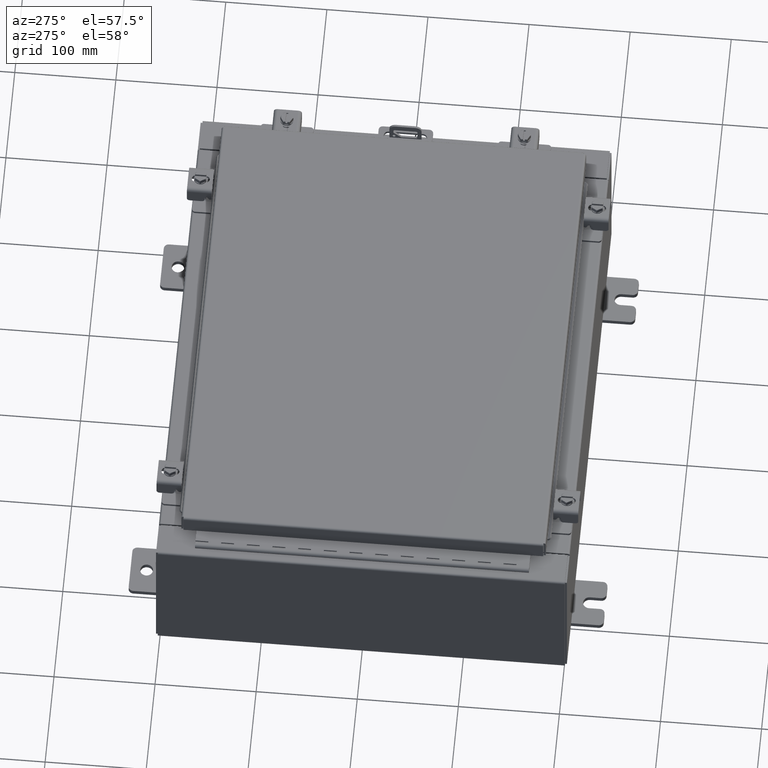
[diagram: clean part render]
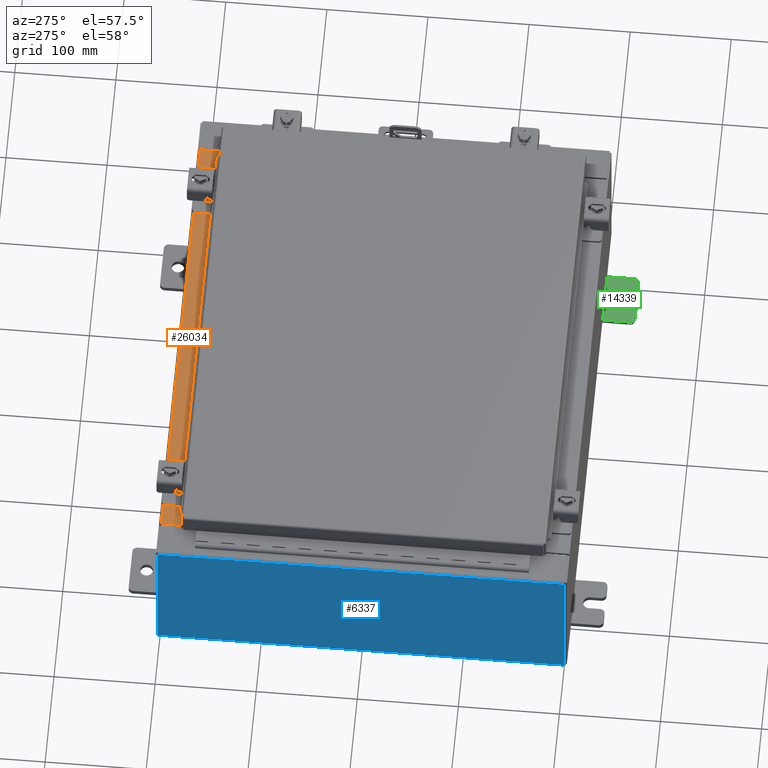
[diagram: same view with three faces highlighted in distinct colors, each labeled with its STEP entity id]
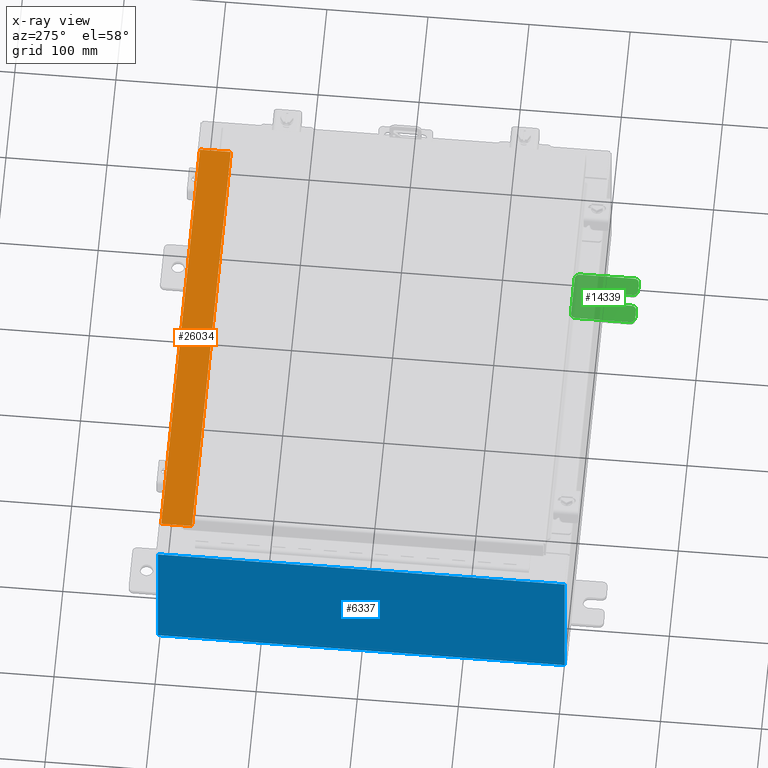
[diagram: x-ray of the same camera — body ghosted, the three highlighted faces saturated]
A machine part, auxiliary view with three faces highlighted in distinct colors.
The next image is the same camera in x-ray (body ghosted, the three faces saturated) — at least one of them is partly hidden behind the body in this view.
Their STEP definitions:

[orange] entity #26034 — the highlighted planar face has unit normal (0, 0, 1).
#578 = CARTESIAN_POINT ( 'NONE',  ( 8.637200000000000000, -0.08769999999999965300, 3.000000000000000900 ) ) ;
#1614 = VERTEX_POINT ( 'NONE', #14060 ) ;
#1762 = VECTOR ( 'NONE', #8350, 39.37007874015748100 ) ;
#2016 = EDGE_CURVE ( 'NONE', #11743, #1614, #24458, .T. ) ;
#2446 = CARTESIAN_POINT ( 'NONE',  ( -8.637200000000000000, -0.07469999999999973900, 3.000000000000000900 ) ) ;
#3567 = CARTESIAN_POINT ( 'NONE',  ( 0.0000000000000000000, 1.069354855923099900E-014, 3.000000000000000900 ) ) ;
#4260 = VECTOR ( 'NONE', #22694, 39.37007874015748100 ) ;
#4851 = VECTOR ( 'NONE', #14466, 39.37007874015748100 ) ;
#5469 = EDGE_CURVE ( 'NONE', #8157, #11743, #15552, .T. ) ;
#6122 = LINE ( 'NONE', #2446, #4851 ) ;
#6949 = DIRECTION ( 'NONE',  ( -1.000000000000000000, 0.0000000000000000000, 0.0000000000000000000 ) ) ;
#6972 = ORIENTED_EDGE ( 'NONE', *, *, #15783, .F. ) ;
#7086 = VECTOR ( 'NONE', #6949, 39.37007874015748100 ) ;
#7666 = CARTESIAN_POINT ( 'NONE',  ( 8.637200000000000000, -1.287299999999999900, 3.000000000000005300 ) ) ;
#8157 = VERTEX_POINT ( 'NONE', #578 ) ;
#8350 = DIRECTION ( 'NONE',  ( -1.000000000000000000, 3.162886113166609200E-017, -1.128005754888089100E-031 ) ) ;
#9191 = AXIS2_PLACEMENT_3D ( 'NONE', #3567, #11656, #25755 ) ;
#10632 = CARTESIAN_POINT ( 'NONE',  ( 8.637200000000000000, -1.300299999999999800, 3.000000000000005300 ) ) ;
#11656 = DIRECTION ( 'NONE',  ( 0.0000000000000000000, 3.566381192773190000E-015, 1.000000000000000000 ) ) ;
#11743 = VERTEX_POINT ( 'NONE', #7666 ) ;
#11952 = ORIENTED_EDGE ( 'NONE', *, *, #2016, .F. ) ;
#14060 = CARTESIAN_POINT ( 'NONE',  ( -8.637200000000000000, -1.287299999999999200, 3.000000000000005300 ) ) ;
#14132 = VERTEX_POINT ( 'NONE', #17858 ) ;
#14334 = EDGE_CURVE ( 'NONE', #8157, #14132, #17785, .T. ) ;
#14466 = DIRECTION ( 'NONE',  ( -0.0000000000000000000, 1.000000000000000000, -3.566381192773190000E-015 ) ) ;
#15552 = LINE ( 'NONE', #10632, #4260 ) ;
#15783 = EDGE_CURVE ( 'NONE', #1614, #14132, #6122, .T. ) ;
#16930 = EDGE_LOOP ( 'NONE', ( #6972, #11952, #19156, #19965 ) ) ;
#17785 = LINE ( 'NONE', #24420, #1762 ) ;
#17858 = CARTESIAN_POINT ( 'NONE',  ( -8.637200000000000000, -0.08770000000000000000, 3.000000000000000900 ) ) ;
#19156 = ORIENTED_EDGE ( 'NONE', *, *, #5469, .F. ) ;
#19965 = ORIENTED_EDGE ( 'NONE', *, *, #14334, .T. ) ;
#21664 = PLANE ( 'NONE',  #9191 ) ;
#22694 = DIRECTION ( 'NONE',  ( -0.0000000000000000000, -1.000000000000000000, 3.566381192773190000E-015 ) ) ;
#23066 = CARTESIAN_POINT ( 'NONE',  ( 8.637200000000000000, -1.287299999999999900, 3.000000000000005300 ) ) ;
#24420 = CARTESIAN_POINT ( 'NONE',  ( -2.773851121247453900E-018, -0.08770000000000000000, 3.000000000000001300 ) ) ;
#24458 = LINE ( 'NONE', #23066, #7086 ) ;
#25755 = DIRECTION ( 'NONE',  ( 0.0000000000000000000, -1.000000000000000000, 3.566381192773190000E-015 ) ) ;
#25961 = FACE_OUTER_BOUND ( 'NONE', #16930, .T. ) ;
#26034 = ADVANCED_FACE ( 'NONE', ( #25961 ), #21664, .T. ) ;

[blue] entity #6337 — the highlighted planar face has unit normal (1, 0, 0).
#249 = LINE ( 'NONE', #5908, #21650 ) ;
#366 = EDGE_CURVE ( 'NONE', #5786, #7258, #249, .T. ) ;
#1404 = FACE_OUTER_BOUND ( 'NONE', #11728, .T. ) ;
#1722 = DIRECTION ( 'NONE',  ( 1.000000000000000000, 0.0000000000000000000, 3.319545939341922800E-015 ) ) ;
#2284 = VERTEX_POINT ( 'NONE', #9750 ) ;
#3407 = DIRECTION ( 'NONE',  ( -0.0000000000000000000, 1.000000000000000000, -0.0000000000000000000 ) ) ;
#3761 = ORIENTED_EDGE ( 'NONE', *, *, #366, .T. ) ;
#5786 = VERTEX_POINT ( 'NONE', #9465 ) ;
#5908 = CARTESIAN_POINT ( 'NONE',  ( -10.00000000000000000, -7.925300000000000000, -3.345627304943080600E-014 ) ) ;
#6337 = ADVANCED_FACE ( 'NONE', ( #1404 ), #25852, .F. ) ;
#6363 = CARTESIAN_POINT ( 'NONE',  ( -10.00000000000000000, 7.925300000000000000, 0.01299999999999985900 ) ) ;
#6603 = ORIENTED_EDGE ( 'NONE', *, *, #23966, .T. ) ;
#6825 = LINE ( 'NONE', #23470, #10299 ) ;
#6869 = ORIENTED_EDGE ( 'NONE', *, *, #13597, .T. ) ;
#7258 = VERTEX_POINT ( 'NONE', #19580 ) ;
#9465 = CARTESIAN_POINT ( 'NONE',  ( -10.00000000000000000, -7.925300000000000000, 0.01299999999999986400 ) ) ;
#9600 = VECTOR ( 'NONE', #14231, 39.37007874015748100 ) ;
#9750 = CARTESIAN_POINT ( 'NONE',  ( -10.00000000000002000, 7.925300000000000000, 5.837599999999999200 ) ) ;
#10299 = VECTOR ( 'NONE', #3407, 39.37007874015748100 ) ;
#10738 = ORIENTED_EDGE ( 'NONE', *, *, #20665, .F. ) ;
#11728 = EDGE_LOOP ( 'NONE', ( #6869, #6603, #10738, #3761 ) ) ;
#12165 = LINE ( 'NONE', #21615, #22249 ) ;
#13597 = EDGE_CURVE ( 'NONE', #7258, #2284, #12165, .T. ) ;
#14231 = DIRECTION ( 'NONE',  ( 3.319545939341922800E-015, 0.0000000000000000000, -1.000000000000000000 ) ) ;
#15778 = DIRECTION ( 'NONE',  ( 3.319545939341922800E-015, 0.0000000000000000000, -1.000000000000000000 ) ) ;
#19547 = VERTEX_POINT ( 'NONE', #6363 ) ;
#19580 = CARTESIAN_POINT ( 'NONE',  ( -10.00000000000002300, -7.925300000000000000, 5.837599999999999200 ) ) ;
#19960 = DIRECTION ( 'NONE',  ( -3.319545939341922800E-015, 0.0000000000000000000, 1.000000000000000000 ) ) ;
#20306 = LINE ( 'NONE', #24320, #9600 ) ;
#20665 = EDGE_CURVE ( 'NONE', #5786, #19547, #6825, .T. ) ;
#21615 = CARTESIAN_POINT ( 'NONE',  ( -10.00000000000002300, -7.925300000000000000, 5.837599999999999200 ) ) ;
#21650 = VECTOR ( 'NONE', #19960, 39.37007874015748100 ) ;
#22249 = VECTOR ( 'NONE', #23664, 39.37007874015748100 ) ;
#23470 = CARTESIAN_POINT ( 'NONE',  ( -10.00000000000000000, 7.925300000000000000, 0.01299999999999986400 ) ) ;
#23664 = DIRECTION ( 'NONE',  ( 0.0000000000000000000, 1.000000000000000000, 0.0000000000000000000 ) ) ;
#23790 = CARTESIAN_POINT ( 'NONE',  ( -10.00000000000000000, 0.0000000000000000000, -3.345627304943080600E-014 ) ) ;
#23853 = AXIS2_PLACEMENT_3D ( 'NONE', #23790, #1722, #15778 ) ;
#23966 = EDGE_CURVE ( 'NONE', #2284, #19547, #20306, .T. ) ;
#24320 = CARTESIAN_POINT ( 'NONE',  ( -10.00000000000000000, 7.925300000000000000, -3.345627304943080600E-014 ) ) ;
#25852 = PLANE ( 'NONE',  #23853 ) ;

[green] entity #14339 — the highlighted planar face has unit normal (0, 0, 1).
#540 = LINE ( 'NONE', #4676, #5918 ) ;
#619 = ORIENTED_EDGE ( 'NONE', *, *, #14265, .T. ) ;
#629 = ORIENTED_EDGE ( 'NONE', *, *, #14003, .T. ) ;
#842 = CIRCLE ( 'NONE', #25333, 0.2499999999999999200 ) ;
#855 = CIRCLE ( 'NONE', #12617, 0.1900000000000011100 ) ;
#952 = EDGE_CURVE ( 'NONE', #15799, #6788, #23199, .T. ) ;
#1268 = ORIENTED_EDGE ( 'NONE', *, *, #3987, .F. ) ;
#1887 = ORIENTED_EDGE ( 'NONE', *, *, #5994, .T. ) ;
#2004 = VERTEX_POINT ( 'NONE', #6862 ) ;
#2025 = VERTEX_POINT ( 'NONE', #15028 ) ;
#2319 = CARTESIAN_POINT ( 'NONE',  ( 0.0000000000000000000, 0.0000000000000000000, 0.0000000000000000000 ) ) ;
#2732 = VERTEX_POINT ( 'NONE', #25861 ) ;
#3363 = DIRECTION ( 'NONE',  ( 0.0000000000000000000, 1.639108796198553600E-015, 1.000000000000000000 ) ) ;
#3370 = AXIS2_PLACEMENT_3D ( 'NONE', #2319, #24495, #12412 ) ;
#3524 = ORIENTED_EDGE ( 'NONE', *, *, #11803, .T. ) ;
#3553 = VECTOR ( 'NONE', #24166, 39.37007874015748100 ) ;
#3662 = CARTESIAN_POINT ( 'NONE',  ( 0.0000000000000000000, 1.059999999999996300, 0.8099999999999938400 ) ) ;
#3987 = EDGE_CURVE ( 'NONE', #17593, #16641, #842, .T. ) ;
#4180 = CARTESIAN_POINT ( 'NONE',  ( 0.0000000000000000000, -1.060000000000004100, -0.8100000000000050500 ) ) ;
#4474 = VERTEX_POINT ( 'NONE', #12376 ) ;
#4615 = ORIENTED_EDGE ( 'NONE', *, *, #20386, .T. ) ;
#4676 = CARTESIAN_POINT ( 'NONE',  ( 0.0000000000000000000, -1.250000000000002200, 0.9999999999999992200 ) ) ;
#4731 = DIRECTION ( 'NONE',  ( -1.000000000000000000, 6.523827964459549700E-016, 5.163192708025532000E-017 ) ) ;
#4772 = CARTESIAN_POINT ( 'NONE',  ( 0.0000000000000000000, -1.250000000000005300, -0.8100000000000047200 ) ) ;
#4858 = CIRCLE ( 'NONE', #9508, 0.1900000000000011400 ) ;
#5067 = DIRECTION ( 'NONE',  ( 1.000000000000000000, -0.0000000000000000000, -5.163192708025532000E-017 ) ) ;
#5079 = VECTOR ( 'NONE', #6634, 39.37007874015748100 ) ;
#5451 = ORIENTED_EDGE ( 'NONE', *, *, #16317, .T. ) ;
#5662 = CARTESIAN_POINT ( 'NONE',  ( 0.0000000000000000000, -1.250000000000004700, -0.4400000000000002200 ) ) ;
#5703 = DIRECTION ( 'NONE',  ( 0.0000000000000000000, 0.0000000000000000000, -1.000000000000000000 ) ) ;
#5918 = VECTOR ( 'NONE', #18712, 39.37007874015748100 ) ;
#5994 = EDGE_CURVE ( 'NONE', #14937, #9703, #4858, .T. ) ;
#6093 = CIRCLE ( 'NONE', #7003, 0.1900000000000011100 ) ;
#6168 = CARTESIAN_POINT ( 'NONE',  ( 0.0000000000000000000, -1.060000000000001200, 0.9999999999999988900 ) ) ;
#6191 = DIRECTION ( 'NONE',  ( 0.0000000000000000000, 0.0000000000000000000, -1.000000000000000000 ) ) ;
#6615 = CARTESIAN_POINT ( 'NONE',  ( 0.0000000000000000000, 1.059999999999993600, -0.8100000000000089400 ) ) ;
#6634 = DIRECTION ( 'NONE',  ( 0.0000000000000000000, 1.000000000000000000, -1.639108796198558100E-015 ) ) ;
#6788 = VERTEX_POINT ( 'NONE', #6168 ) ;
#6862 = CARTESIAN_POINT ( 'NONE',  ( 0.0000000000000000000, 1.249999999999997300, 0.8099999999999935000 ) ) ;
#7003 = AXIS2_PLACEMENT_3D ( 'NONE', #3662, #17722, #5703 ) ;
#7084 = FACE_OUTER_BOUND ( 'NONE', #9710, .T. ) ;
#7123 = CARTESIAN_POINT ( 'NONE',  ( 1.928684683526964400E-016, -1.060000000000003400, -0.2499999999999994400 ) ) ;
#7297 = EDGE_CURVE ( 'NONE', #2004, #15799, #6093, .T. ) ;
#7359 = CIRCLE ( 'NONE', #23680, 0.1900000000000011100 ) ;
#7473 = CARTESIAN_POINT ( 'NONE',  ( 3.910348609313009100E-016, 0.6249999999999992200, -0.2499999999999999200 ) ) ;
#7760 = VECTOR ( 'NONE', #13993, 39.37007874015748100 ) ;
#7925 = CARTESIAN_POINT ( 'NONE',  ( 4.168508244714285900E-016, 0.6249999999999992200, 0.2499999999999999200 ) ) ;
#8608 = EDGE_CURVE ( 'NONE', #4474, #2025, #15117, .T. ) ;
#8614 = DIRECTION ( 'NONE',  ( 0.0000000000000000000, 0.0000000000000000000, -1.000000000000000000 ) ) ;
#8698 = EDGE_CURVE ( 'NONE', #16641, #17593, #22685, .T. ) ;
#8954 = VERTEX_POINT ( 'NONE', #5662 ) ;
#9077 = CARTESIAN_POINT ( 'NONE',  ( 4.780733988912460100E-016, -0.6249999999999993300, -0.2499999999999993900 ) ) ;
#9463 = EDGE_CURVE ( 'NONE', #2732, #13977, #13478, .T. ) ;
#9501 = ORIENTED_EDGE ( 'NONE', *, *, #23372, .T. ) ;
#9508 = AXIS2_PLACEMENT_3D ( 'NONE', #10263, #24373, #12280 ) ;
#9703 = VERTEX_POINT ( 'NONE', #23437 ) ;
#9710 = EDGE_LOOP ( 'NONE', ( #15701, #15703, #4615, #1887, #3524, #24215, #22214, #12414, #5451, #619, #16660, #9501, #629, #11925 ) ) ;
#9743 = VECTOR ( 'NONE', #17961, 39.37007874015748100 ) ;
#10263 = CARTESIAN_POINT ( 'NONE',  ( 0.0000000000000000000, -1.060000000000002100, 0.4400000000000016700 ) ) ;
#10409 = PLANE ( 'NONE',  #3370 ) ;
#11480 = DIRECTION ( 'NONE',  ( 1.000000000000000000, -0.0000000000000000000, -5.163192708025532000E-017 ) ) ;
#11803 = EDGE_CURVE ( 'NONE', #9703, #2732, #15087, .T. ) ;
#11880 = CARTESIAN_POINT ( 'NONE',  ( 0.0000000000000000000, -1.060000000000003400, -0.4400000000000005000 ) ) ;
#11925 = ORIENTED_EDGE ( 'NONE', *, *, #7297, .T. ) ;
#11992 = CARTESIAN_POINT ( 'NONE',  ( 0.0000000000000000000, -1.060000000000001600, 0.8099999999999978300 ) ) ;
#12280 = DIRECTION ( 'NONE',  ( 0.0000000000000000000, 0.0000000000000000000, -1.000000000000000000 ) ) ;
#12376 = CARTESIAN_POINT ( 'NONE',  ( 0.0000000000000000000, -1.060000000000004500, -1.000000000000006400 ) ) ;
#12412 = DIRECTION ( 'NONE',  ( -0.0000000000000000000, 0.0000000000000000000, -1.000000000000000000 ) ) ;
#12414 = ORIENTED_EDGE ( 'NONE', *, *, #13108, .T. ) ;
#12503 = EDGE_LOOP ( 'NONE', ( #13261, #1268 ) ) ;
#12536 = CARTESIAN_POINT ( 'NONE',  ( 0.0000000000000000000, 1.059999999999996500, 0.9999999999999953400 ) ) ;
#12617 = AXIS2_PLACEMENT_3D ( 'NONE', #11880, #25992, #13873 ) ;
#13108 = EDGE_CURVE ( 'NONE', #21747, #8954, #855, .T. ) ;
#13261 = ORIENTED_EDGE ( 'NONE', *, *, #8698, .F. ) ;
#13478 = CIRCLE ( 'NONE', #19261, 0.2499999999999999200 ) ;
#13873 = DIRECTION ( 'NONE',  ( 0.0000000000000000000, 0.0000000000000000000, -1.000000000000000000 ) ) ;
#13968 = DIRECTION ( 'NONE',  ( 0.0000000000000000000, 0.0000000000000000000, -1.000000000000000000 ) ) ;
#13977 = VERTEX_POINT ( 'NONE', #19356 ) ;
#13993 = DIRECTION ( 'NONE',  ( 0.0000000000000000000, -1.000000000000000000, 1.639108796198558100E-015 ) ) ;
#14003 = EDGE_CURVE ( 'NONE', #17039, #2004, #20015, .T. ) ;
#14265 = EDGE_CURVE ( 'NONE', #22307, #4474, #19678, .T. ) ;
#14339 = ADVANCED_FACE ( 'NONE', ( #23159, #7084 ), #10409, .T. ) ;
#14645 = VECTOR ( 'NONE', #3363, 39.37007874015748100 ) ;
#14937 = VERTEX_POINT ( 'NONE', #20387 ) ;
#15028 = CARTESIAN_POINT ( 'NONE',  ( 0.0000000000000000000, 1.059999999999993400, -1.000000000000010000 ) ) ;
#15087 = LINE ( 'NONE', #23983, #9743 ) ;
#15117 = LINE ( 'NONE', #22559, #5079 ) ;
#15701 = ORIENTED_EDGE ( 'NONE', *, *, #952, .T. ) ;
#15703 = ORIENTED_EDGE ( 'NONE', *, *, #19361, .T. ) ;
#15799 = VERTEX_POINT ( 'NONE', #12536 ) ;
#16317 = EDGE_CURVE ( 'NONE', #8954, #22307, #18948, .T. ) ;
#16641 = VERTEX_POINT ( 'NONE', #7473 ) ;
#16660 = ORIENTED_EDGE ( 'NONE', *, *, #8608, .T. ) ;
#16753 = CARTESIAN_POINT ( 'NONE',  ( 4.780733988912460100E-016, -0.6249999999999993300, 5.858939755051854500E-017 ) ) ;
#17039 = VERTEX_POINT ( 'NONE', #24446 ) ;
#17074 = CARTESIAN_POINT ( 'NONE',  ( 4.039428427013647300E-016, 0.6249999999999992200, -9.783840404509077400E-018 ) ) ;
#17593 = VERTEX_POINT ( 'NONE', #7925 ) ;
#17722 = DIRECTION ( 'NONE',  ( 1.000000000000000000, 0.0000000000000000000, -0.0000000000000000000 ) ) ;
#17961 = DIRECTION ( 'NONE',  ( 6.556435184794182400E-016, 1.000000000000000000, 0.0000000000000000000 ) ) ;
#18218 = DIRECTION ( 'NONE',  ( 1.000000000000000000, 0.0000000000000000000, -0.0000000000000000000 ) ) ;
#18712 = DIRECTION ( 'NONE',  ( 0.0000000000000000000, -1.639108796198553600E-015, -1.000000000000000000 ) ) ;
#18758 = DIRECTION ( 'NONE',  ( -6.523827964459551700E-016, -1.000000000000000000, 0.0000000000000000000 ) ) ;
#18948 = LINE ( 'NONE', #22139, #3553 ) ;
#19083 = DIRECTION ( 'NONE',  ( -5.163192708025533800E-017, 0.0000000000000000000, -1.000000000000000000 ) ) ;
#19261 = AXIS2_PLACEMENT_3D ( 'NONE', #16753, #4731, #18758 ) ;
#19311 = AXIS2_PLACEMENT_3D ( 'NONE', #17074, #5067, #19083 ) ;
#19356 = CARTESIAN_POINT ( 'NONE',  ( 4.780733988912460100E-016, -0.6249999999999993300, -0.2499999999999998600 ) ) ;
#19361 = EDGE_CURVE ( 'NONE', #6788, #21868, #26133, .T. ) ;
#19446 = CARTESIAN_POINT ( 'NONE',  ( 0.0000000000000000000, 1.249999999999994200, -1.000000000000010400 ) ) ;
#19678 = CIRCLE ( 'NONE', #21413, 0.1900000000000011100 ) ;
#19954 = VECTOR ( 'NONE', #21152, 39.37007874015748100 ) ;
#20015 = LINE ( 'NONE', #19446, #14645 ) ;
#20386 = EDGE_CURVE ( 'NONE', #21868, #14937, #540, .T. ) ;
#20387 = CARTESIAN_POINT ( 'NONE',  ( 0.0000000000000000000, -1.250000000000003100, 0.4400000000000020000 ) ) ;
#20682 = DIRECTION ( 'NONE',  ( 1.000000000000000000, 0.0000000000000000000, -0.0000000000000000000 ) ) ;
#21152 = DIRECTION ( 'NONE',  ( -6.556435184794182400E-016, -1.000000000000000000, -1.639108796198545600E-016 ) ) ;
#21413 = AXIS2_PLACEMENT_3D ( 'NONE', #4180, #18218, #6191 ) ;
#21747 = VERTEX_POINT ( 'NONE', #7123 ) ;
#21868 = VERTEX_POINT ( 'NONE', #23501 ) ;
#22139 = CARTESIAN_POINT ( 'NONE',  ( 0.0000000000000000000, -1.250000000000002200, 0.9999999999999992200 ) ) ;
#22214 = ORIENTED_EDGE ( 'NONE', *, *, #24748, .T. ) ;
#22307 = VERTEX_POINT ( 'NONE', #4772 ) ;
#22559 = CARTESIAN_POINT ( 'NONE',  ( 0.0000000000000000000, -1.250000000000005600, -1.000000000000006200 ) ) ;
#22685 = CIRCLE ( 'NONE', #19311, 0.2499999999999999200 ) ;
#23159 = FACE_BOUND ( 'NONE', #12503, .T. ) ;
#23199 = LINE ( 'NONE', #26119, #7760 ) ;
#23372 = EDGE_CURVE ( 'NONE', #2025, #17039, #7359, .T. ) ;
#23437 = CARTESIAN_POINT ( 'NONE',  ( 1.928684683526972300E-016, -1.060000000000002100, 0.2500000000000005000 ) ) ;
#23501 = CARTESIAN_POINT ( 'NONE',  ( 0.0000000000000000000, -1.250000000000002400, 0.8099999999999980500 ) ) ;
#23533 = CARTESIAN_POINT ( 'NONE',  ( 4.039428427013647300E-016, 0.6249999999999992200, -9.783840404509077400E-018 ) ) ;
#23680 = AXIS2_PLACEMENT_3D ( 'NONE', #6615, #20682, #8614 ) ;
#23983 = CARTESIAN_POINT ( 'NONE',  ( 6.829619984160658000E-017, -1.250000000000003800, 0.2500000000000005000 ) ) ;
#24166 = DIRECTION ( 'NONE',  ( 0.0000000000000000000, -1.639108796198553600E-015, -1.000000000000000000 ) ) ;
#24215 = ORIENTED_EDGE ( 'NONE', *, *, #9463, .T. ) ;
#24373 = DIRECTION ( 'NONE',  ( 1.000000000000000000, 0.0000000000000000000, -0.0000000000000000000 ) ) ;
#24446 = CARTESIAN_POINT ( 'NONE',  ( 0.0000000000000000000, 1.249999999999994700, -0.8100000000000092700 ) ) ;
#24495 = DIRECTION ( 'NONE',  ( 1.000000000000000000, 0.0000000000000000000, -0.0000000000000000000 ) ) ;
#24748 = EDGE_CURVE ( 'NONE', #13977, #21747, #25337, .T. ) ;
#25333 = AXIS2_PLACEMENT_3D ( 'NONE', #23533, #11480, #25601 ) ;
#25337 = LINE ( 'NONE', #9077, #19954 ) ;
#25400 = AXIS2_PLACEMENT_3D ( 'NONE', #11992, #26083, #13968 ) ;
#25601 = DIRECTION ( 'NONE',  ( -5.163192708025533800E-017, 0.0000000000000000000, -1.000000000000000000 ) ) ;
#25861 = CARTESIAN_POINT ( 'NONE',  ( 0.0000000000000000000, -0.6249999999999992200, 0.2500000000000005000 ) ) ;
#25992 = DIRECTION ( 'NONE',  ( 1.000000000000000000, 0.0000000000000000000, -0.0000000000000000000 ) ) ;
#26083 = DIRECTION ( 'NONE',  ( 1.000000000000000000, 0.0000000000000000000, -0.0000000000000000000 ) ) ;
#26119 = CARTESIAN_POINT ( 'NONE',  ( 0.0000000000000000000, 1.249999999999997600, 0.9999999999999951200 ) ) ;
#26133 = CIRCLE ( 'NONE', #25400, 0.1900000000000011100 ) ;